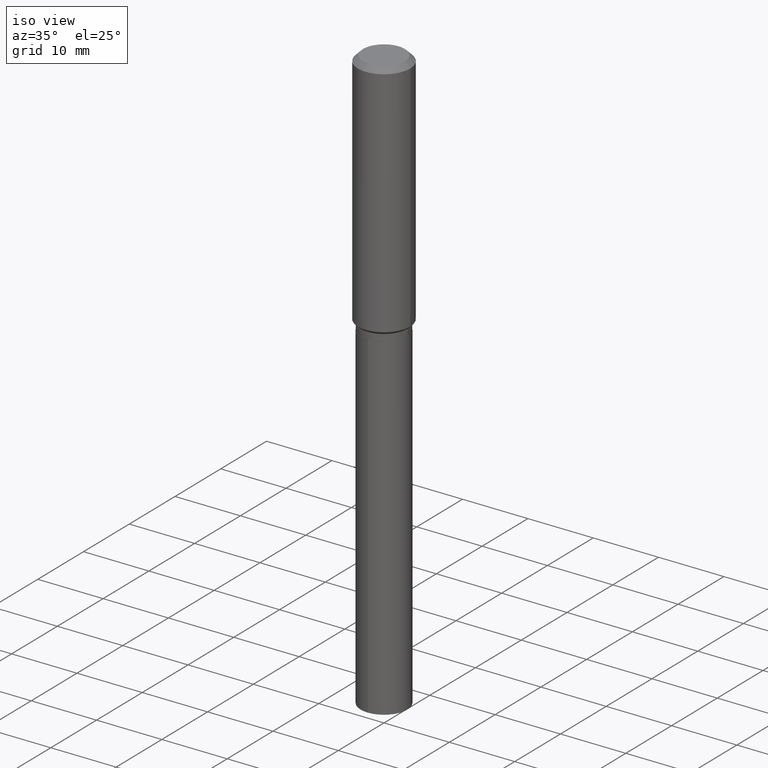
[diagram: clean part render]
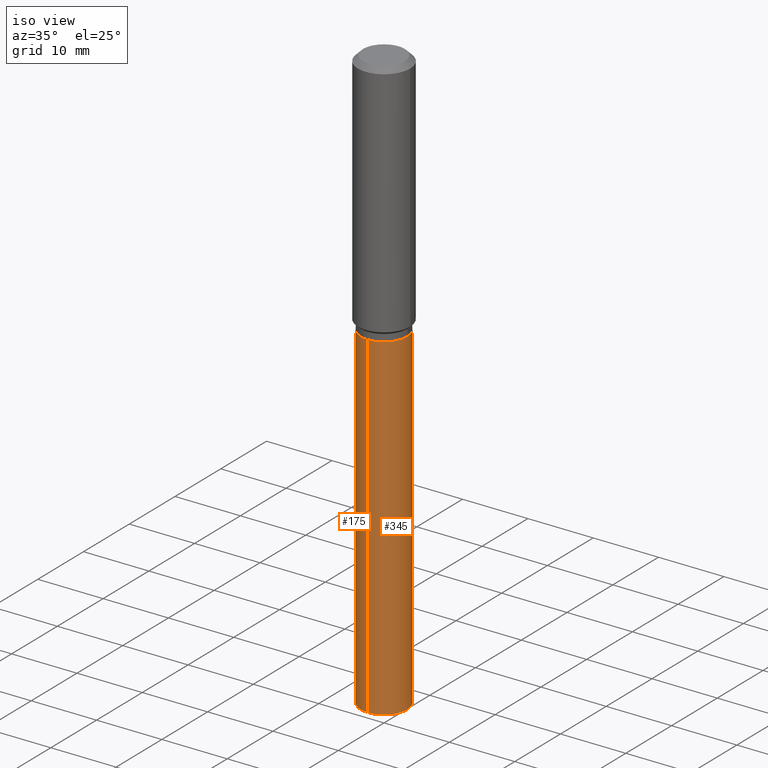
[diagram: same view with one multi-face feature highlighted, each face labeled with its STEP entity id]
A machine part, iso view. The highlighted faces form ONE feature: a constant-radius fillet chain: 2 tangent blend faces with common blend radius 3.5712 mm. The faces share edges in the B-rep.
Their STEP definitions:
[1] entity #175 (Cylinder):
#11 = EDGE_CURVE ( 'NONE', #86, #144, #331, .T. ) ;
#14 = VECTOR ( 'NONE', #383, 39.37007874015748143 ) ;
#46 = DIRECTION ( 'NONE',  ( -6.982962677686265133E-15, -1.000000000000000000, 3.885985766236505386E-15 ) ) ;
#58 = ORIENTED_EDGE ( 'NONE', *, *, #113, .F. ) ;
#73 = FACE_OUTER_BOUND ( 'NONE', #218, .T. ) ;
#80 = ORIENTED_EDGE ( 'NONE', *, *, #11, .T. ) ;
#82 = CYLINDRICAL_SURFACE ( 'NONE', #191, 0.1406000000000000028 ) ;
#86 = VERTEX_POINT ( 'NONE', #438 ) ;
#88 = AXIS2_PLACEMENT_3D ( 'NONE', #271, #339, #232 ) ;
#111 = DIRECTION ( 'NONE',  ( -6.982962677686265133E-15, -1.000000000000000000, 3.885985766236505386E-15 ) ) ;
#113 = EDGE_CURVE ( 'NONE', #306, #376, #426, .T. ) ;
#135 = CIRCLE ( 'NONE', #88, 0.1406000000000000028 ) ;
#143 = EDGE_CURVE ( 'NONE', #376, #144, #135, .T. ) ;
#144 = VERTEX_POINT ( 'NONE', #344 ) ;
#168 = AXIS2_PLACEMENT_3D ( 'NONE', #440, #281, #46 ) ;
#175 = ADVANCED_FACE ( 'NONE', ( #73 ), #82, .T. ) ;
#191 = AXIS2_PLACEMENT_3D ( 'NONE', #381, #348, #111 ) ;
#213 = ORIENTED_EDGE ( 'NONE', *, *, #143, .F. ) ;
#218 = EDGE_LOOP ( 'NONE', ( #58, #471, #80, #213 ) ) ;
#232 = DIRECTION ( 'NONE',  ( -6.982962677686265133E-15, -1.000000000000000000, 3.885985766236505386E-15 ) ) ;
#271 = CARTESIAN_POINT ( 'NONE',  ( 3.659399521575438742E-29, -5.224652675444883351E-15, -1.496400000000000174 ) ) ;
#281 = DIRECTION ( 'NONE',  ( -2.445483652818804664E-29, 3.491460077618715012E-15, 1.000000000000000000 ) ) ;
#289 = DIRECTION ( 'NONE',  ( -2.445483652818804384E-29, 3.491460077618715012E-15, 1.000000000000000000 ) ) ;
#306 = VERTEX_POINT ( 'NONE', #400 ) ;
#329 = CARTESIAN_POINT ( 'NONE',  ( -9.818045524826524238E-16, -0.1406000000000052208, -1.496399999999999730 ) ) ;
#331 = LINE ( 'NONE', #329, #342 ) ;
#332 = EDGE_CURVE ( 'NONE', #306, #86, #459, .T. ) ;
#339 = DIRECTION ( 'NONE',  ( -2.445483652818804664E-29, 3.491460077618715012E-15, 1.000000000000000000 ) ) ;
#342 = VECTOR ( 'NONE', #289, 39.37007874015748143 ) ;
#344 = CARTESIAN_POINT ( 'NONE',  ( -9.818045524826524238E-16, -0.1406000000000052208, -1.496399999999999730 ) ) ;
#348 = DIRECTION ( 'NONE',  ( -2.445483652818804664E-29, 3.491460077618715012E-15, 1.000000000000000000 ) ) ;
#355 = CARTESIAN_POINT ( 'NONE',  ( 9.990230864787874584E-16, 0.1405999999999947847, -1.496400000000000841 ) ) ;
#376 = VERTEX_POINT ( 'NONE', #355 ) ;
#381 = CARTESIAN_POINT ( 'NONE',  ( 3.659399521575438742E-29, -5.224652675444883351E-15, -1.496400000000000174 ) ) ;
#383 = DIRECTION ( 'NONE',  ( -2.445483652818804384E-29, 3.491460077618715012E-15, 1.000000000000000000 ) ) ;
#400 = CARTESIAN_POINT ( 'NONE',  ( 9.990230864787868667E-16, 0.1405999999999876793, -3.527616187128538972 ) ) ;
#426 = LINE ( 'NONE', #489, #14 ) ;
#438 = CARTESIAN_POINT ( 'NONE',  ( -9.818045524826025283E-16, -0.1406000000000122707, -3.527616187128538083 ) ) ;
#440 = CARTESIAN_POINT ( 'NONE',  ( 8.626705502539222610E-29, -1.231656290181708132E-14, -3.527616187128538527 ) ) ;
#459 = CIRCLE ( 'NONE', #168, 0.1406000000000000028 ) ;
#471 = ORIENTED_EDGE ( 'NONE', *, *, #332, .T. ) ;
#489 = CARTESIAN_POINT ( 'NONE',  ( 9.990230864787373657E-16, 0.1405999999999947847, -1.496400000000000841 ) ) ;
[2] entity #345 (Cylinder):
#11 = EDGE_CURVE ( 'NONE', #86, #144, #331, .T. ) ;
#14 = VECTOR ( 'NONE', #383, 39.37007874015748143 ) ;
#23 = DIRECTION ( 'NONE',  ( -2.445483652818804664E-29, 3.491460077618715012E-15, 1.000000000000000000 ) ) ;
#26 = CIRCLE ( 'NONE', #269, 0.1406000000000000028 ) ;
#53 = CYLINDRICAL_SURFACE ( 'NONE', #109, 0.1406000000000000028 ) ;
#66 = EDGE_CURVE ( 'NONE', #86, #306, #325, .T. ) ;
#86 = VERTEX_POINT ( 'NONE', #438 ) ;
#109 = AXIS2_PLACEMENT_3D ( 'NONE', #163, #205, #469 ) ;
#113 = EDGE_CURVE ( 'NONE', #306, #376, #426, .T. ) ;
#144 = VERTEX_POINT ( 'NONE', #344 ) ;
#146 = CARTESIAN_POINT ( 'NONE',  ( 8.626705502539222610E-29, -1.231656290181708132E-14, -3.527616187128538527 ) ) ;
#163 = CARTESIAN_POINT ( 'NONE',  ( 3.659399521575438742E-29, -5.224652675444883351E-15, -1.496400000000000174 ) ) ;
#167 = FACE_OUTER_BOUND ( 'NONE', #385, .T. ) ;
#174 = DIRECTION ( 'NONE',  ( -2.445483652818804664E-29, 3.491460077618715012E-15, 1.000000000000000000 ) ) ;
#176 = AXIS2_PLACEMENT_3D ( 'NONE', #146, #174, #297 ) ;
#205 = DIRECTION ( 'NONE',  ( -2.445483652818804664E-29, 3.491460077618715012E-15, 1.000000000000000000 ) ) ;
#245 = DIRECTION ( 'NONE',  ( -6.982962677686265133E-15, -1.000000000000000000, 3.885985766236505386E-15 ) ) ;
#269 = AXIS2_PLACEMENT_3D ( 'NONE', #432, #23, #245 ) ;
#275 = ORIENTED_EDGE ( 'NONE', *, *, #11, .F. ) ;
#289 = DIRECTION ( 'NONE',  ( -2.445483652818804384E-29, 3.491460077618715012E-15, 1.000000000000000000 ) ) ;
#297 = DIRECTION ( 'NONE',  ( -6.982962677686265133E-15, -1.000000000000000000, 3.885985766236505386E-15 ) ) ;
#306 = VERTEX_POINT ( 'NONE', #400 ) ;
#325 = CIRCLE ( 'NONE', #176, 0.1406000000000000028 ) ;
#329 = CARTESIAN_POINT ( 'NONE',  ( -9.818045524826524238E-16, -0.1406000000000052208, -1.496399999999999730 ) ) ;
#331 = LINE ( 'NONE', #329, #342 ) ;
#342 = VECTOR ( 'NONE', #289, 39.37007874015748143 ) ;
#344 = CARTESIAN_POINT ( 'NONE',  ( -9.818045524826524238E-16, -0.1406000000000052208, -1.496399999999999730 ) ) ;
#345 = ADVANCED_FACE ( 'NONE', ( #167 ), #53, .T. ) ;
#349 = ORIENTED_EDGE ( 'NONE', *, *, #113, .T. ) ;
#354 = EDGE_CURVE ( 'NONE', #144, #376, #26, .T. ) ;
#355 = CARTESIAN_POINT ( 'NONE',  ( 9.990230864787874584E-16, 0.1405999999999947847, -1.496400000000000841 ) ) ;
#376 = VERTEX_POINT ( 'NONE', #355 ) ;
#383 = DIRECTION ( 'NONE',  ( -2.445483652818804384E-29, 3.491460077618715012E-15, 1.000000000000000000 ) ) ;
#385 = EDGE_LOOP ( 'NONE', ( #428, #349, #467, #275 ) ) ;
#400 = CARTESIAN_POINT ( 'NONE',  ( 9.990230864787868667E-16, 0.1405999999999876793, -3.527616187128538972 ) ) ;
#426 = LINE ( 'NONE', #489, #14 ) ;
#428 = ORIENTED_EDGE ( 'NONE', *, *, #66, .T. ) ;
#432 = CARTESIAN_POINT ( 'NONE',  ( 3.659399521575438742E-29, -5.224652675444883351E-15, -1.496400000000000174 ) ) ;
#438 = CARTESIAN_POINT ( 'NONE',  ( -9.818045524826025283E-16, -0.1406000000000122707, -3.527616187128538083 ) ) ;
#467 = ORIENTED_EDGE ( 'NONE', *, *, #354, .F. ) ;
#469 = DIRECTION ( 'NONE',  ( -6.982962677686265133E-15, -1.000000000000000000, 3.885985766236505386E-15 ) ) ;
#489 = CARTESIAN_POINT ( 'NONE',  ( 9.990230864787373657E-16, 0.1405999999999947847, -1.496400000000000841 ) ) ;